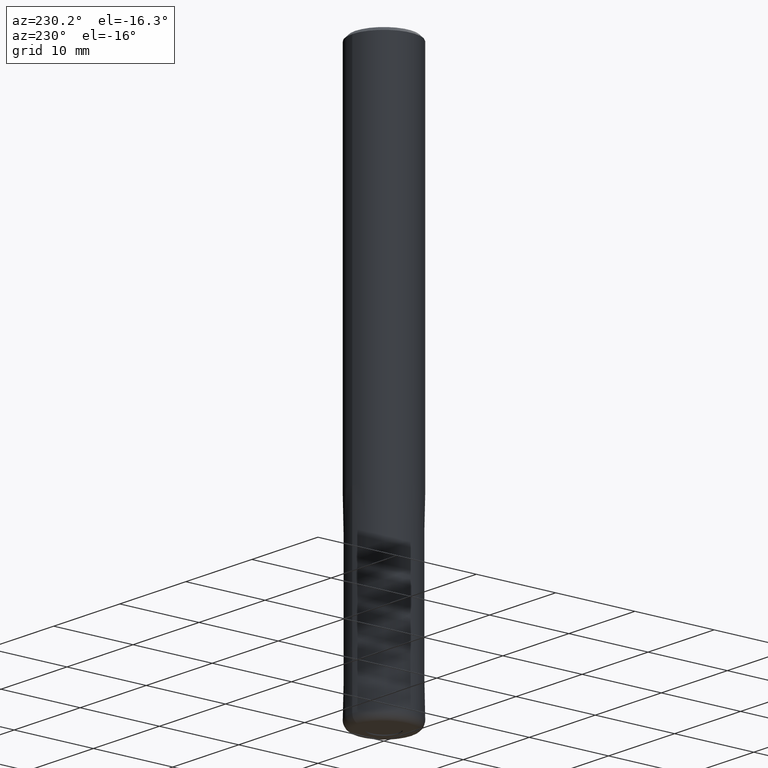
[diagram: clean part render]
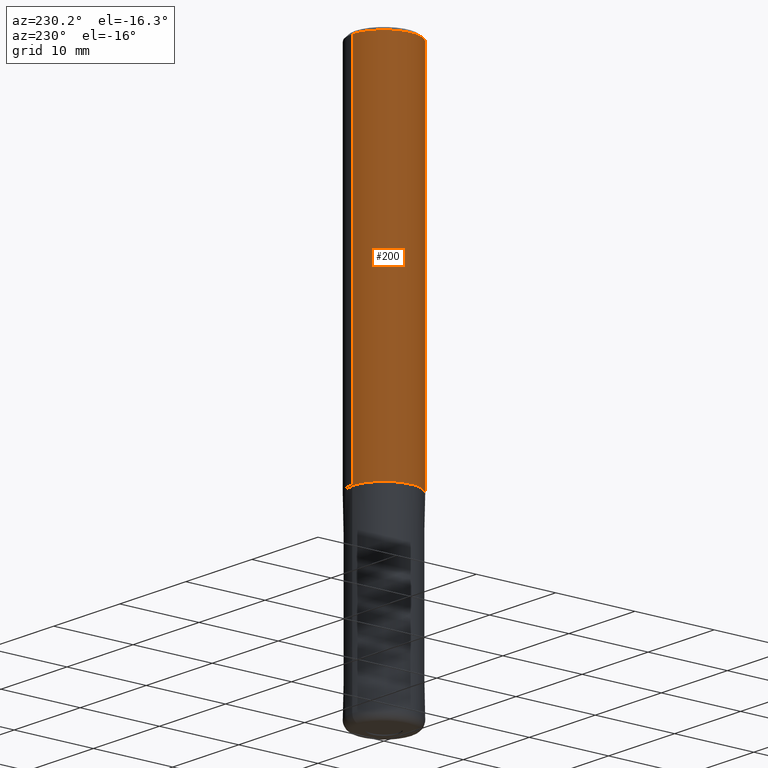
[diagram: same view with one face highlighted and labeled with its STEP entity id]
A machine part, auxiliary view. The second image highlights one B-rep face of the part: STEP entity #200.
In plain terms, the highlighted cylindrical surface (partial cylindrical patch) has radius 4 mm, axis along (-0, -0, 1).
Its self-contained STEP definition (entity closure, byte-faithful):
#118=EDGE_CURVE('',#156,#146,#279,.T.);
#138=VERTEX_POINT('',#302);
#146=VERTEX_POINT('',#312);
#156=VERTEX_POINT('',#322);
#182=VERTEX_POINT('',#352);
#184=EDGE_CURVE('',#138,#182,#354,.T.);
#192=EDGE_CURVE('',#156,#182,#365,.T.);
#194=EDGE_CURVE('',#146,#138,#367,.T.);
#200=ADVANCED_FACE('',(#373),#374,.T.);
#279=LINE('',#457,#458);
#302=CARTESIAN_POINT('',(0.0,4.0,-0.399999999999999));
#312=CARTESIAN_POINT('',(4.89842541528951E-016,-4.0,-0.399999999999999));
#322=CARTESIAN_POINT('',(4.89842541528951E-016,-4.0,-46.0));
#352=CARTESIAN_POINT('',(0.0,4.0,-46.0));
#354=LINE('',#551,#552);
#365=CIRCLE('',#565,4.0);
#367=CIRCLE('',#568,4.0);
#373=FACE_OUTER_BOUND('',#574,.T.);
#374=CYLINDRICAL_SURFACE('',#575,4.0);
#457=CARTESIAN_POINT('',(4.89842541528951E-016,-4.0,-23.2));
#458=VECTOR('',#647,1.0);
#551=CARTESIAN_POINT('',(-4.89842541528951E-016,4.0,-23.2));
#552=VECTOR('',#744,1.0);
#565=AXIS2_PLACEMENT_3D('',#764,#765,#766);
#568=AXIS2_PLACEMENT_3D('',#767,#768,#769);
#574=EDGE_LOOP('',(#771,#772,#773,#774));
#575=AXIS2_PLACEMENT_3D('',#775,#776,#777);
#647=DIRECTION('',(-0.0,-0.0,1.0));
#744=DIRECTION('',(0.0,0.0,-1.0));
#764=CARTESIAN_POINT('',(0.0,0.0,-46.0));
#765=DIRECTION('',(0.0,0.0,-1.0));
#766=DIRECTION('',(0.0,1.0,0.0));
#767=CARTESIAN_POINT('',(0.0,0.0,-0.399999999999999));
#768=DIRECTION('',(0.0,0.0,-1.0));
#769=DIRECTION('',(0.0,1.0,0.0));
#771=ORIENTED_EDGE('',*,*,#184,.T.);
#772=ORIENTED_EDGE('',*,*,#192,.F.);
#773=ORIENTED_EDGE('',*,*,#118,.T.);
#774=ORIENTED_EDGE('',*,*,#194,.T.);
#775=CARTESIAN_POINT('',(0.0,0.0,-23.2));
#776=DIRECTION('',(-0.0,-0.0,1.0));
#777=DIRECTION('',(0.0,1.0,0.0));